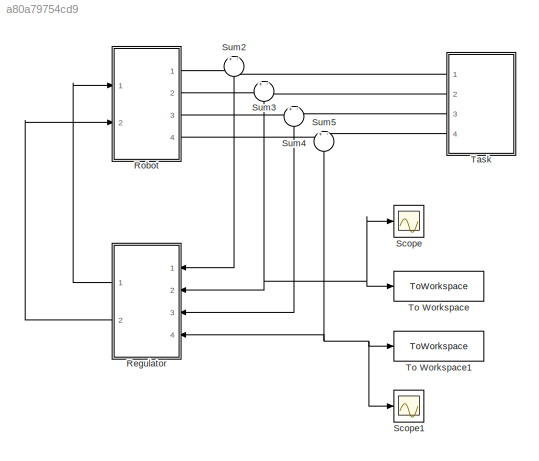
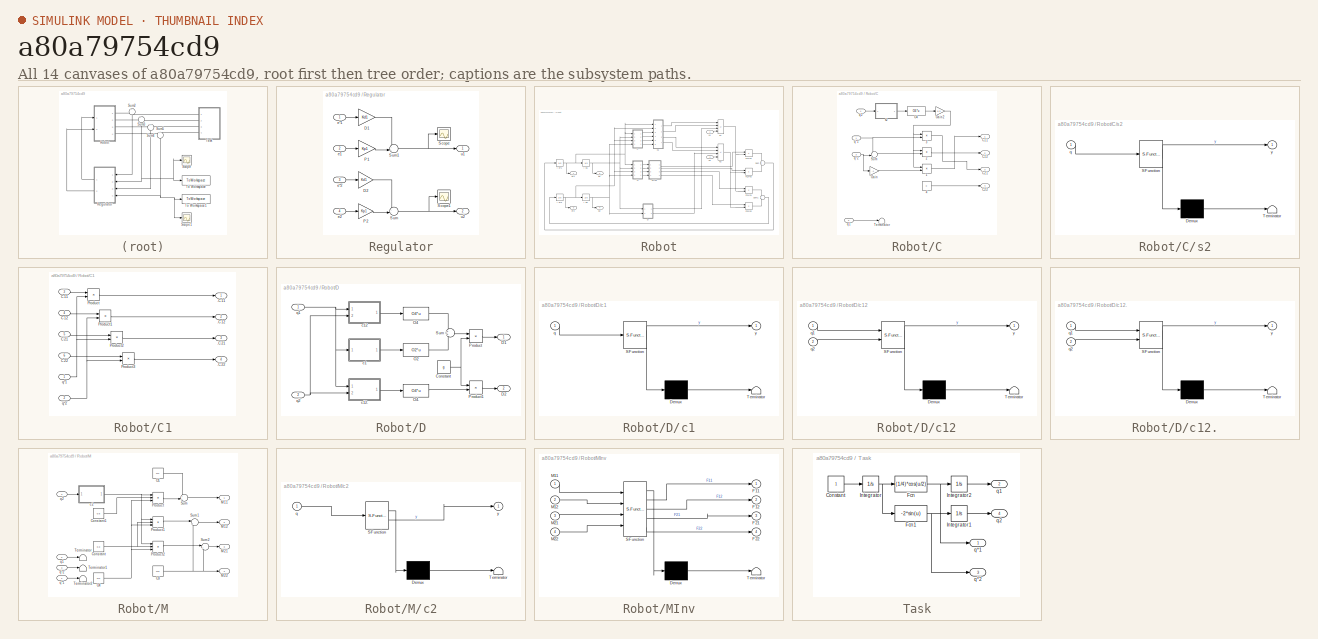
[diagram: thumbnail index - all 14 canvases of the model, root first then tree order]
MODEL slx_a80a79754cd9
KIND model
CONFIG AbsTol = auto
CONFIG EnableMultiTasking = off
CONFIG FixedStep = auto
CONFIG MaxStep = auto
CONFIG MinStep = auto
CONFIG RelTol = 1e-8
CONFIG SampleTimeConstraint = Unconstrained
CONFIG Solver = ode45
CONFIG SolverName = ode45
CONFIG StartTime = 0.0
CONFIG StopTime = T
BLOCK [SubSystem] Regulator
  Ports = [4, 2]
  RequestExecContextInheritance = off
BLOCK [Outport] Regulator/ u1
BLOCK [Gain] Regulator/D1
  Gain = Kd1
BLOCK [Gain] Regulator/D2
  Gain = Kd1
BLOCK [Gain] Regulator/P1
  Gain = Kp1
BLOCK [Gain] Regulator/P2
  Gain = Kp1
BLOCK [Scope] Regulator/Scope
  Floating = off
  NumInputPorts = 1
  Ports = [1]
  ScopeSpecificationString = Simulink.scopes.TimeScopeBlockCfg('CurrentConfiguration', extmgr.ConfigurationSet(extmgr.Configuration('Core','General UI',true),extmgr.Configuration('Core','Source UI',true),extmgr.Configuration('Sources','WiredSimulink',true,'DataLoggingVariableName','ScopeData8'),extmgr.Configuration('Visuals','Time Domain',true,'SerializedDisplays',{struct('MinYLimReal','-4.79733','MaxYLimReal','293.17593','YL...<+1399ch>
BLOCK [Scope] Regulator/Scope1
  Floating = off
  NumInputPorts = 1
  Ports = [1]
  ScopeSpecificationString = Simulink.scopes.TimeScopeBlockCfg('CurrentConfiguration', extmgr.ConfigurationSet(extmgr.Configuration('Core','General UI',true),extmgr.Configuration('Core','Source UI',true),extmgr.Configuration('Sources','WiredSimulink',true,'DataLoggingVariableName','ScopeData9'),extmgr.Configuration('Visuals','Time Domain',true,'SerializedDisplays',{struct('MinYLimReal','-268.0534','MaxYLimReal','2252.00593','...<+1407ch>
BLOCK [Sum] Regulator/Sum
  Inputs = --|
  Ports = [2, 1]
BLOCK [Sum] Regulator/Sum1
  Inputs = --|
  Ports = [2, 1]
BLOCK [Inport] Regulator/e*1
BLOCK [Inport] Regulator/e*2
  Port = 3
BLOCK [Inport] Regulator/e1
  Port = 2
BLOCK [Inport] Regulator/e2
  Port = 4
BLOCK [Outport] Regulator/u2
  Port = 2
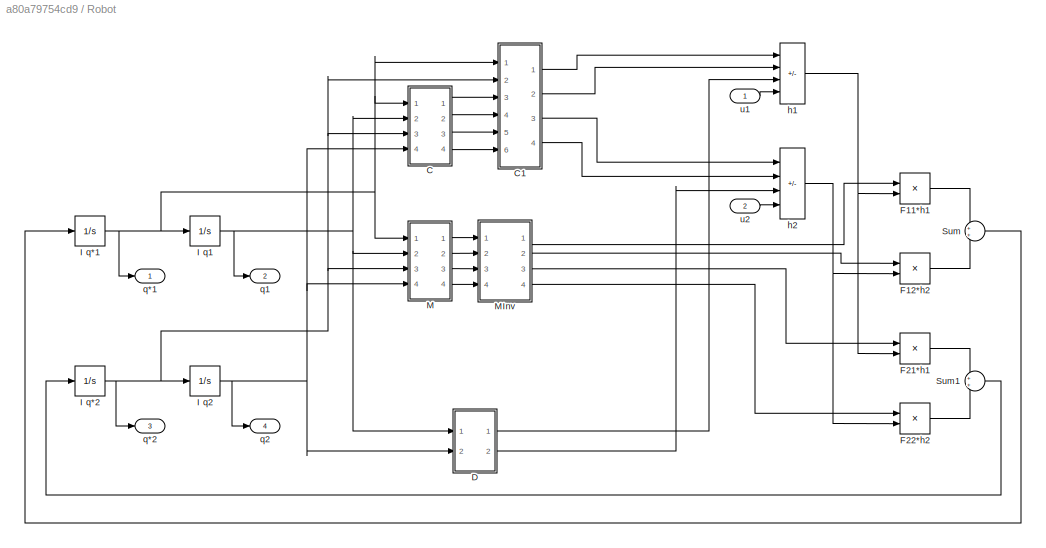
BLOCK [SubSystem] Robot
  Ports = [2, 4]
  RequestExecContextInheritance = off
BLOCK [SubSystem] Robot/C
  Ports = [4, 4]
  RequestExecContextInheritance = off
BLOCK [Product] Robot/C/1
  Ports = [2, 1]
BLOCK [Product] Robot/C/2
  Ports = [2, 1]
BLOCK [Product] Robot/C/3
  Ports = [2, 1]
BLOCK [Constant] Robot/C/4
  Value = 0
BLOCK [Outport] Robot/C/C11
BLOCK [Outport] Robot/C/C12
  Port = 2
BLOCK [Outport] Robot/C/C21
  Port = 3
BLOCK [Outport] Robot/C/C22
  Port = 4
BLOCK [Gain] Robot/C/Gain
  Gain = -1
BLOCK [Gain] Robot/C/Gain2
  Gain = 0.3
BLOCK [Fcn] Robot/C/O4
  Expr = O4*u
BLOCK [Sum] Robot/C/Sum
  Inputs = --|
  Ports = [2, 1]
BLOCK [Terminator] Robot/C/Terminator
BLOCK [Inport] Robot/C/q*1
BLOCK [Inport] Robot/C/q*2
  Port = 3
BLOCK [Inport] Robot/C/q1
  Port = 2
BLOCK [Inport] Robot/C/q2
  Port = 4
BLOCK [SubSystem] Robot/C/s2
  ErrorFcn = Stateflow.Translate.translate
  PermitHierarchicalResolution = ExplicitOnly
  Ports = [1, 1]
  RequestExecContextInheritance = off
  SFBlockType = MATLAB Function
  TreatAsAtomicUnit = on
BLOCK [Demux] Robot/C/s2/ Demux 
  Outputs = 1
  Ports = [1, 1]
BLOCK [S-Function] Robot/C/s2/ SFunction 
  EnableBusSupport = on
  FunctionName = sf_sfun
  PortCounts = [1 2]
  Ports = [1, 2]
  SFcnIsStateOwnerBlock = off
  SFunctionDeploymentMode = off
  Tag = Stateflow S-Function 5
BLOCK [Terminator] Robot/C/s2/ Terminator 
BLOCK [Inport] Robot/C/s2/q
BLOCK [Outport] Robot/C/s2/y
BLOCK [SubSystem] Robot/C1
  Ports = [6, 4]
  RequestExecContextInheritance = off
BLOCK [Outport] Robot/C1/.C11
BLOCK [Outport] Robot/C1/.C12
  Port = 2
BLOCK [Outport] Robot/C1/.C21
  Port = 3
BLOCK [Outport] Robot/C1/.C22
  Port = 4
BLOCK [Inport] Robot/C1/C11
  Port = 3
BLOCK [Inport] Robot/C1/C12
  Port = 4
BLOCK [Inport] Robot/C1/C21
  Port = 5
BLOCK [Inport] Robot/C1/C22
  Port = 6
BLOCK [Product] Robot/C1/Product
  Ports = [2, 1]
BLOCK [Product] Robot/C1/Product1
  Ports = [2, 1]
BLOCK [Product] Robot/C1/Product2
  Ports = [2, 1]
BLOCK [Product] Robot/C1/Product3
  Ports = [2, 1]
BLOCK [Inport] Robot/C1/q*1
BLOCK [Inport] Robot/C1/q*2
  Port = 2
BLOCK [SubSystem] Robot/D
  Ports = [2, 2]
  RequestExecContextInheritance = off
BLOCK [Constant] Robot/D/Constant
  Value = g
BLOCK [Outport] Robot/D/D1
BLOCK [Outport] Robot/D/D2
  Port = 2
BLOCK [Fcn] Robot/D/O2
  Expr = O2*u
BLOCK [Fcn] Robot/D/O4
  Expr = O4*u
BLOCK [Fcn] Robot/D/O4.
  Expr = O4*u
BLOCK [Product] Robot/D/Product
  Ports = [2, 1]
BLOCK [Product] Robot/D/Product1
  Ports = [2, 1]
BLOCK [Sum] Robot/D/Sum
  Ports = [2, 1]
BLOCK [SubSystem] Robot/D/c1
  ErrorFcn = Stateflow.Translate.translate
  PermitHierarchicalResolution = ExplicitOnly
  Ports = [1, 1]
  RequestExecContextInheritance = off
  SFBlockType = MATLAB Function
  TreatAsAtomicUnit = on
BLOCK [Demux] Robot/D/c1/ Demux 
  Outputs = 1
  Ports = [1, 1]
BLOCK [S-Function] Robot/D/c1/ SFunction 
  EnableBusSupport = on
  FunctionName = sf_sfun
  PortCounts = [1 2]
  Ports = [1, 2]
  SFcnIsStateOwnerBlock = off
  SFunctionDeploymentMode = off
  Tag = Stateflow S-Function 3
BLOCK [Terminator] Robot/D/c1/ Terminator 
BLOCK [Inport] Robot/D/c1/q
BLOCK [Outport] Robot/D/c1/y
BLOCK [SubSystem] Robot/D/c12
  ErrorFcn = Stateflow.Translate.translate
  PermitHierarchicalResolution = ExplicitOnly
  Ports = [2, 1]
  RequestExecContextInheritance = off
  SFBlockType = MATLAB Function
  TreatAsAtomicUnit = on
BLOCK [SubSystem] Robot/D/c12.
  ErrorFcn = Stateflow.Translate.translate
  PermitHierarchicalResolution = ExplicitOnly
  Ports = [2, 1]
  RequestExecContextInheritance = off
  SFBlockType = MATLAB Function
  TreatAsAtomicUnit = on
BLOCK [Demux] Robot/D/c12./ Demux 
  Outputs = 1
  Ports = [1, 1]
BLOCK [S-Function] Robot/D/c12./ SFunction 
  EnableBusSupport = on
  FunctionName = sf_sfun
  PortCounts = [2 2]
  Ports = [2, 2]
  SFcnIsStateOwnerBlock = off
  SFunctionDeploymentMode = off
  Tag = Stateflow S-Function 1
BLOCK [Terminator] Robot/D/c12./ Terminator 
BLOCK [Inport] Robot/D/c12./q1
BLOCK [Inport] Robot/D/c12./q2
  Port = 2
BLOCK [Outport] Robot/D/c12./y
BLOCK [Demux] Robot/D/c12/ Demux 
  Outputs = 1
  Ports = [1, 1]
BLOCK [S-Function] Robot/D/c12/ SFunction 
  EnableBusSupport = on
  FunctionName = sf_sfun
  PortCounts = [2 2]
  Ports = [2, 2]
  SFcnIsStateOwnerBlock = off
  SFunctionDeploymentMode = off
  Tag = Stateflow S-Function 2
BLOCK [Terminator] Robot/D/c12/ Terminator 
BLOCK [Inport] Robot/D/c12/q1
BLOCK [Inport] Robot/D/c12/q2
  Port = 2
BLOCK [Outport] Robot/D/c12/y
BLOCK [Inport] Robot/D/q1
  NameLocation = top
BLOCK [Inport] Robot/D/q2
  Port = 2
BLOCK [Product] Robot/F11*h1
  Ports = [2, 1]
BLOCK [Product] Robot/F12*h2
  Ports = [2, 1]
BLOCK [Product] Robot/F21*h1
  Ports = [2, 1]
BLOCK [Product] Robot/F22*h2
  Ports = [2, 1]
BLOCK [Integrator] Robot/I q*1
  Ports = [1, 1]
BLOCK [Integrator] Robot/I q*2
  Ports = [1, 1]
BLOCK [Integrator] Robot/I q1
  Ports = [1, 1]
BLOCK [Integrator] Robot/I q2
  Ports = [1, 1]
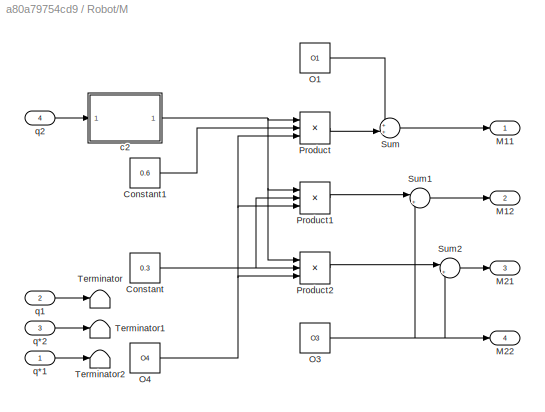
BLOCK [SubSystem] Robot/M
  Ports = [4, 4]
  RequestExecContextInheritance = off
BLOCK [Constant] Robot/M/Constant
  Value = 0.3
BLOCK [Constant] Robot/M/Constant1
  Value = 0.6
BLOCK [Outport] Robot/M/M11
BLOCK [Outport] Robot/M/M12
  Port = 2
BLOCK [Outport] Robot/M/M21
  Port = 3
BLOCK [Outport] Robot/M/M22
  Port = 4
BLOCK [Constant] Robot/M/O1
  Value = O1
BLOCK [Constant] Robot/M/O3
  Value = O3
BLOCK [Constant] Robot/M/O4
  Value = O4
BLOCK [Product] Robot/M/Product
  Inputs = 3
  Ports = [3, 1]
BLOCK [Product] Robot/M/Product1
  Inputs = 3
  Ports = [3, 1]
BLOCK [Product] Robot/M/Product2
  Inputs = 3
  Ports = [3, 1]
BLOCK [Sum] Robot/M/Sum
  Inputs = ++|
  Ports = [2, 1]
BLOCK [Sum] Robot/M/Sum1
  Inputs = |++
  Ports = [2, 1]
BLOCK [Sum] Robot/M/Sum2
  Inputs = |++
  Ports = [2, 1]
BLOCK [Terminator] Robot/M/Terminator
BLOCK [Terminator] Robot/M/Terminator1
BLOCK [Terminator] Robot/M/Terminator2
BLOCK [SubSystem] Robot/M/c2
  ErrorFcn = Stateflow.Translate.translate
  PermitHierarchicalResolution = ExplicitOnly
  Ports = [1, 1]
  RequestExecContextInheritance = off
  SFBlockType = MATLAB Function
  TreatAsAtomicUnit = on
BLOCK [Demux] Robot/M/c2/ Demux 
  Outputs = 1
  Ports = [1, 1]
BLOCK [S-Function] Robot/M/c2/ SFunction 
  EnableBusSupport = on
  FunctionName = sf_sfun
  PortCounts = [1 2]
  Ports = [1, 2]
  SFcnIsStateOwnerBlock = off
  SFunctionDeploymentMode = off
  Tag = Stateflow S-Function 4
BLOCK [Terminator] Robot/M/c2/ Terminator 
BLOCK [Inport] Robot/M/c2/q
BLOCK [Outport] Robot/M/c2/y
BLOCK [Inport] Robot/M/q*1
BLOCK [Inport] Robot/M/q*2
  Port = 3
BLOCK [Inport] Robot/M/q1
  Port = 2
BLOCK [Inport] Robot/M/q2
  Port = 4
BLOCK [SubSystem] Robot/MInv
  ErrorFcn = Stateflow.Translate.translate
  PermitHierarchicalResolution = ExplicitOnly
  Ports = [4, 4]
  RequestExecContextInheritance = off
  SFBlockType = MATLAB Function
  TreatAsAtomicUnit = on
BLOCK [Demux] Robot/MInv/ Demux 
  Outputs = 1
  Ports = [1, 1]
BLOCK [S-Function] Robot/MInv/ SFunction 
  EnableBusSupport = on
  FunctionName = sf_sfun
  PortCounts = [4 5]
  Ports = [4, 5]
  SFcnIsStateOwnerBlock = off
  SFunctionDeploymentMode = off
  Tag = Stateflow S-Function 6
BLOCK [Terminator] Robot/MInv/ Terminator 
BLOCK [Outport] Robot/MInv/F11
BLOCK [Outport] Robot/MInv/F12
  Port = 2
BLOCK [Outport] Robot/MInv/F21
  Port = 3
BLOCK [Outport] Robot/MInv/F22
  Port = 4
BLOCK [Inport] Robot/MInv/M11
BLOCK [Inport] Robot/MInv/M12
  Port = 2
BLOCK [Inport] Robot/MInv/M21
  Port = 3
BLOCK [Inport] Robot/MInv/M22
  Port = 4
BLOCK [Sum] Robot/Sum
  Ports = [2, 1]
BLOCK [Sum] Robot/Sum1
  Ports = [2, 1]
BLOCK [Sum] Robot/h1
  IconShape = rectangular
  Inputs = ---+
  Ports = [4, 1]
BLOCK [Sum] Robot/h2
  IconShape = rectangular
  Inputs = ---+
  Ports = [4, 1]
BLOCK [Outport] Robot/q*1
BLOCK [Outport] Robot/q*2
  Port = 3
BLOCK [Outport] Robot/q1
  Port = 2
BLOCK [Outport] Robot/q2
  Port = 4
BLOCK [Inport] Robot/u1
BLOCK [Inport] Robot/u2
  Port = 2
BLOCK [Scope] Scope
  Floating = off
  NumInputPorts = 1
  Ports = [1]
  ScopeSpecificationString = Simulink.scopes.TimeScopeBlockCfg('CurrentConfiguration', extmgr.ConfigurationSet(extmgr.Configuration('Core','General UI',true),extmgr.Configuration('Core','Source UI',true),extmgr.Configuration('Sources','WiredSimulink',true),extmgr.Configuration('Visuals','Time Domain',true,'SerializedDisplays',{struct('MinYLimReal','-0.10932','MaxYLimReal','0.01215','YLabelReal','','MinYLimMag','0.00000','MaxY...<+1352ch>
BLOCK [Scope] Scope1
  Floating = off
  NumInputPorts = 1
  Ports = [1]
  ScopeSpecificationString = Simulink.scopes.TimeScopeBlockCfg('CurrentConfiguration', extmgr.ConfigurationSet(extmgr.Configuration('Core','General UI',true),extmgr.Configuration('Core','Source UI',true),extmgr.Configuration('Sources','WiredSimulink',true,'DataLoggingVariableName','ScopeData1'),extmgr.Configuration('Visuals','Time Domain',true,'SerializedDisplays',{struct('MinYLimReal','-2.25073','MaxYLimReal','0.25653','YLab...<+1391ch>
BLOCK [Sum] Sum2
  Inputs = +-
  NameLocation = left
  Ports = [2, 1]
BLOCK [Sum] Sum3
  Inputs = +-
  NameLocation = left
  Ports = [2, 1]
BLOCK [Sum] Sum4
  Inputs = +-
  NameLocation = left
  Ports = [2, 1]
BLOCK [Sum] Sum5
  Inputs = +-
  NameLocation = left
  Ports = [2, 1]
BLOCK [SubSystem] Task
  Ports = [0, 4]
  RequestExecContextInheritance = off
BLOCK [Constant] Task/Constant
BLOCK [Fcn] Task/Fcn
  Expr = (1/4)*cos(u/2)
BLOCK [Fcn] Task/Fcn1
  Expr = -2*sin(u)
BLOCK [Integrator] Task/Integrator
  Ports = [1, 1]
BLOCK [Integrator] Task/Integrator1
  InitialCondition = 2
  Ports = [1, 1]
BLOCK [Integrator] Task/Integrator2
  Ports = [1, 1]
BLOCK [Outport] Task/q*1
BLOCK [Outport] Task/q*2
  Port = 3
BLOCK [Outport] Task/q1
  Port = 2
BLOCK [Outport] Task/q2
  Port = 4
BLOCK [ToWorkspace] To Workspace
  FixptAsFi = on
  MaxDataPoints = inf
  Ports = [1]
  SampleTime = -1
  VariableName = e1
BLOCK [ToWorkspace] To Workspace1
  FixptAsFi = on
  MaxDataPoints = inf
  Ports = [1]
  SampleTime = -1
  VariableName = e2
LINE Regulator/D1:1 -> Regulator/Sum1:1
LINE Regulator/D2:1 -> Regulator/Sum:1
LINE Regulator/P1:1 -> Regulator/Sum1:2
LINE Regulator/P2:1 -> Regulator/Sum:2
NET Regulator/Sum1:1 -> Regulator/ u1:1, Regulator/Scope:1
NET Regulator/Sum:1 -> Regulator/Scope1:1, Regulator/u2:1
LINE Regulator/e*1:1 -> Regulator/D1:1
LINE Regulator/e*2:1 -> Regulator/D2:1
LINE Regulator/e1:1 -> Regulator/P1:1
LINE Regulator/e2:1 -> Regulator/P2:1
LINE Regulator:1 -> Robot:1
LINE Regulator:2 -> Robot:2
LINE Robot/C/1:1 -> Robot/C/C11:1
LINE Robot/C/2:1 -> Robot/C/C12:1
LINE Robot/C/3:1 -> Robot/C/C21:1
LINE Robot/C/4:1 -> Robot/C/C22:1
NET Robot/C/Gain2:1 -> Robot/C/1:1, Robot/C/2:1, Robot/C/3:1
LINE Robot/C/Gain:1 -> Robot/C/1:2
LINE Robot/C/O4:1 -> Robot/C/Gain2:1
LINE Robot/C/Sum:1 -> Robot/C/2:2
NET Robot/C/q*1:1 -> Robot/C/3:2, Robot/C/Sum:1
NET Robot/C/q*2:1 -> Robot/C/Gain:1, Robot/C/Sum:2
LINE Robot/C/q1:1 -> Robot/C/Terminator:1
LINE Robot/C/q2:1 -> Robot/C/s2:1
LINE Robot/C/s2:1 -> Robot/C/O4:1
LINE Robot/C1/C11:1 -> Robot/C1/Product:1
LINE Robot/C1/C12:1 -> Robot/C1/Product1:1
LINE Robot/C1/C21:1 -> Robot/C1/Product2:1
LINE Robot/C1/C22:1 -> Robot/C1/Product3:1
LINE Robot/C1/Product1:1 -> Robot/C1/.C12:1
LINE Robot/C1/Product2:1 -> Robot/C1/.C21:1
LINE Robot/C1/Product3:1 -> Robot/C1/.C22:1
LINE Robot/C1/Product:1 -> Robot/C1/.C11:1
NET Robot/C1/q*1:1 -> Robot/C1/Product2:2, Robot/C1/Product:2
NET Robot/C1/q*2:1 -> Robot/C1/Product1:2, Robot/C1/Product3:2
LINE Robot/C1:1 -> Robot/h1:1
LINE Robot/C1:2 -> Robot/h1:2
LINE Robot/C1:3 -> Robot/h2:1
LINE Robot/C1:4 -> Robot/h2:2
LINE Robot/C:1 -> Robot/C1:3
LINE Robot/C:2 -> Robot/C1:4
LINE Robot/C:3 -> Robot/C1:5
LINE Robot/C:4 -> Robot/C1:6
NET Robot/D/Constant:1 -> Robot/D/Product1:1, Robot/D/Product:2
LINE Robot/D/O2:1 -> Robot/D/Sum:2
LINE Robot/D/O4.:1 -> Robot/D/Product1:2
LINE Robot/D/O4:1 -> Robot/D/Sum:1
LINE Robot/D/Product1:1 -> Robot/D/D2:1
LINE Robot/D/Product:1 -> Robot/D/D1:1
LINE Robot/D/Sum:1 -> Robot/D/Product:1
LINE Robot/D/c12.:1 -> Robot/D/O4.:1
LINE Robot/D/c12:1 -> Robot/D/O4:1
LINE Robot/D/c1:1 -> Robot/D/O2:1
NET Robot/D/q1:1 -> Robot/D/c12.:1, Robot/D/c12:1, Robot/D/c1:1
NET Robot/D/q2:1 -> Robot/D/c12.:2, Robot/D/c12:2
LINE Robot/D:1 -> Robot/h1:3
LINE Robot/D:2 -> Robot/h2:3
LINE Robot/F11*h1:1 -> Robot/Sum:1
LINE Robot/F12*h2:1 -> Robot/Sum:2
LINE Robot/F21*h1:1 -> Robot/Sum1:1
LINE Robot/F22*h2:1 -> Robot/Sum1:2
NET Robot/I q*1:1 -> Robot/C1:1, Robot/C:1, Robot/I q1:1, Robot/M:1, Robot/q*1:1
NET Robot/I q*2:1 -> Robot/C1:2, Robot/C:3, Robot/I q2:1, Robot/M:3, Robot/q*2:1
NET Robot/I q1:1 -> Robot/C:2, Robot/D:1, Robot/M:2, Robot/q1:1
NET Robot/I q2:1 -> Robot/C:4, Robot/D:2, Robot/M:4, Robot/q2:1
LINE Robot/M/Constant1:1 -> Robot/M/Product:2
NET Robot/M/Constant:1 -> Robot/M/Product1:2, Robot/M/Product2:2
LINE Robot/M/O1:1 -> Robot/M/Sum:1
NET Robot/M/O3:1 -> Robot/M/M22:1, Robot/M/Sum1:2, Robot/M/Sum2:2
NET Robot/M/O4:1 -> Robot/M/Product1:3, Robot/M/Product2:3, Robot/M/Product:3
LINE Robot/M/Product1:1 -> Robot/M/Sum1:1
LINE Robot/M/Product2:1 -> Robot/M/Sum2:1
LINE Robot/M/Product:1 -> Robot/M/Sum:2
LINE Robot/M/Sum1:1 -> Robot/M/M12:1
LINE Robot/M/Sum2:1 -> Robot/M/M21:1
LINE Robot/M/Sum:1 -> Robot/M/M11:1
NET Robot/M/c2:1 -> Robot/M/Product1:1, Robot/M/Product2:1, Robot/M/Product:1
LINE Robot/M/q*1:1 -> Robot/M/Terminator2:1
LINE Robot/M/q*2:1 -> Robot/M/Terminator1:1
LINE Robot/M/q1:1 -> Robot/M/Terminator:1
LINE Robot/M/q2:1 -> Robot/M/c2:1
LINE Robot/M:1 -> Robot/MInv:1
LINE Robot/M:2 -> Robot/MInv:2
LINE Robot/M:3 -> Robot/MInv:3
LINE Robot/M:4 -> Robot/MInv:4
LINE Robot/MInv:1 -> Robot/F11*h1:1
LINE Robot/MInv:2 -> Robot/F12*h2:1
LINE Robot/MInv:3 -> Robot/F21*h1:1
LINE Robot/MInv:4 -> Robot/F22*h2:1
LINE Robot/Sum1:1 -> Robot/I q*2:1
LINE Robot/Sum:1 -> Robot/I q*1:1
NET Robot/h1:1 -> Robot/F11*h1:2, Robot/F21*h1:2
NET Robot/h2:1 -> Robot/F12*h2:2, Robot/F22*h2:2
LINE Robot/u1:1 -> Robot/h1:4
LINE Robot/u2:1 -> Robot/h2:4
LINE Robot:1 -> Sum2:1
LINE Robot:2 -> Sum3:1
LINE Robot:3 -> Sum4:1
LINE Robot:4 -> Sum5:1
LINE Sum2:1 -> Regulator:1
NET Sum3:1 -> Regulator:2, Scope:1, To Workspace:1
LINE Sum4:1 -> Regulator:3
NET Sum5:1 -> Regulator:4, Scope1:1, To Workspace1:1
LINE Task/Constant:1 -> Task/Integrator:1
NET Task/Fcn1:1 -> Task/Integrator1:1, Task/q*2:1
NET Task/Fcn:1 -> Task/Integrator2:1, Task/q*1:1
LINE Task/Integrator1:1 -> Task/q2:1
LINE Task/Integrator2:1 -> Task/q1:1
NET Task/Integrator:1 -> Task/Fcn1:1, Task/Fcn:1
LINE Task:1 -> Sum2:2
LINE Task:2 -> Sum3:2
LINE Task:3 -> Sum4:2
LINE Task:4 -> Sum5:2
note: NET lines group one-source signal fan-out (src -> all destinations, sorted); 1:1 wires keep LINE
CHART Robot/D/c12. states=1 transitions=1
  STATE_LABEL 'eML_blk_kernel()'
  STATE_LABEL 'SCRIPT:\nfunction y = c12(q1, q2)\n\ny = cos(q1+q2);\n'
CHART Robot/D/c12 states=1 transitions=1
  STATE_LABEL 'eML_blk_kernel()'
  STATE_LABEL 'SCRIPT:\nfunction y = c12(q1, q2)\n\ny = cos(q1+q2);\n'
CHART Robot/D/c1 states=1 transitions=1
  STATE_LABEL 'eML_blk_kernel()'
  STATE_LABEL 'SCRIPT:\nfunction y = c(q)\n\ny = cos(q);\n'
CHART Robot/M/c2 states=1 transitions=1
  STATE_LABEL 'eML_blk_kernel()'
  STATE_LABEL 'SCRIPT:\nfunction y = c(q)\n\ny = cos(q);'
CHART Robot/C/s2 states=1 transitions=1
  STATE_LABEL 'eML_blk_kernel()'
  STATE_LABEL 'SCRIPT:\nfunction y = s(q)\n\ny = sin(q);\n'
CHART Robot/MInv states=1 transitions=1
  STATE_LABEL 'eML_blk_kernel()'
  STATE_LABEL 'SCRIPT:\nfunction [F11, F12, F21, F22] = c(M11, M12, M21, M22)\n\nM = [M11 M12; M21 M22];\nF = inv(M);\n\nF11 = F(1);\nF12 = F(2);\nF21 = F(3);\nF22 = F(4);\n\n\n\n'
CHART  states=0 transitions=0
CHART  states=0 transitions=0
CHART  states=0 transitions=0
CHART  states=0 transitions=0
CHART  states=0 transitions=0
CHART  states=0 transitions=0
